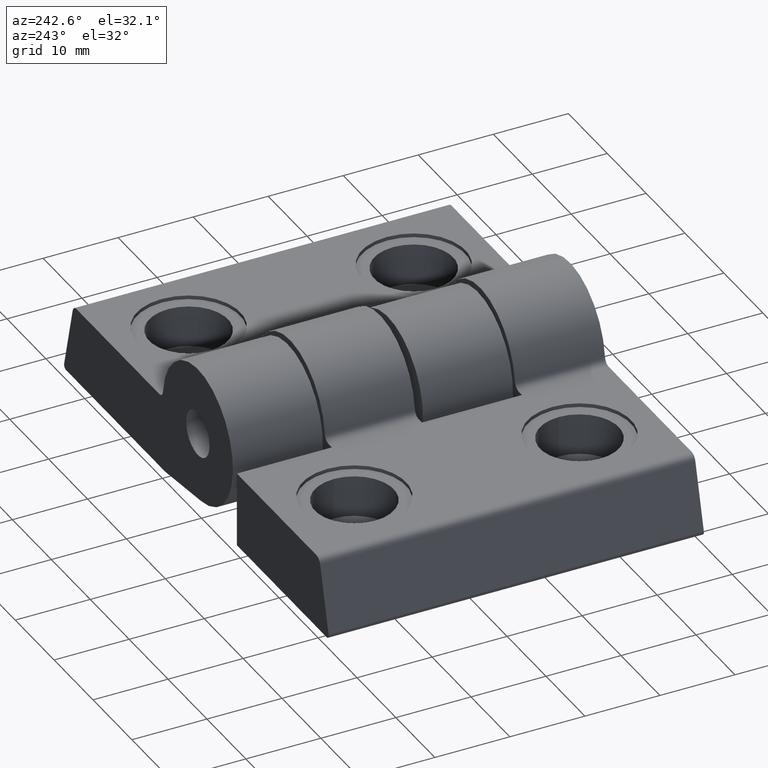
[diagram: clean part render]
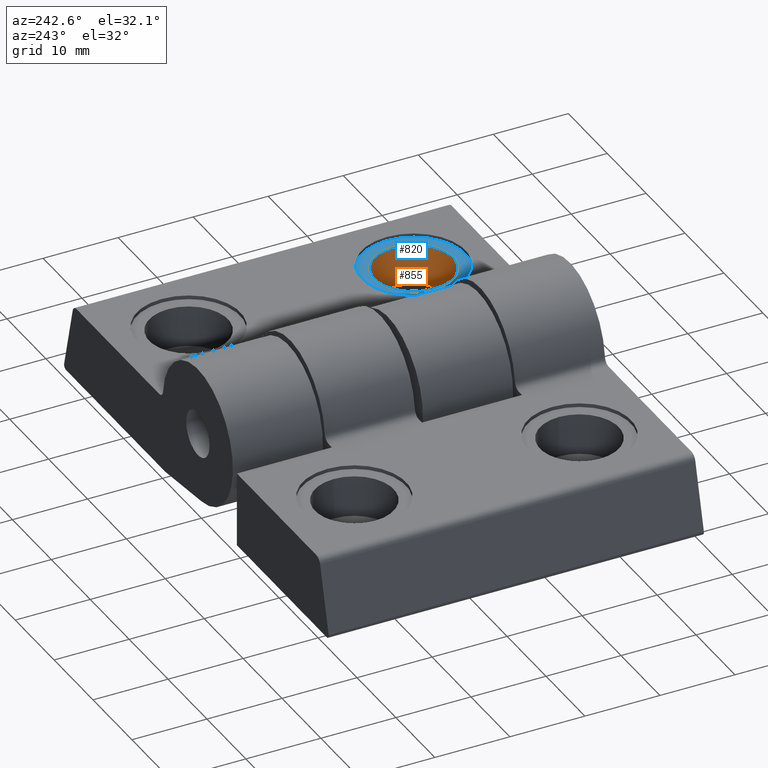
[diagram: same view with the hole feature highlighted: cylindrical wall and planar end face, labeled with their STEP entity ids]
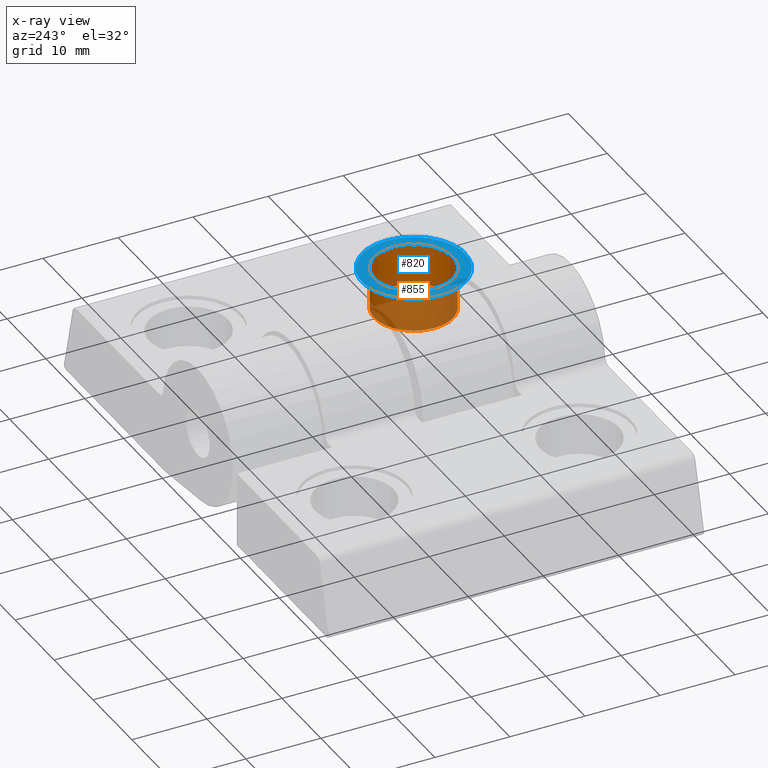
[diagram: x-ray of the same camera — body ghosted, the hole faces saturated]
A machine part, auxiliary view. The highlighted faces form one hole feature of diameter 10.5 mm: the cylindrical wall (entity #855, orange) and its adjacent planar end face (entity #820, blue) — they share a circular edge in the B-rep.
The next image is the same camera in x-ray (body ghosted, the hole faces saturated) — the bore reads through the body.
Wall:
#800=CARTESIAN_POINT('',(37.349988506627142,0.000011439997252,9.500000000000142));
#801=VERTEX_POINT('',#800);
#802=CARTESIAN_POINT('',(47.849987618632895,0.000011439997252,9.500000000000142));
#803=VERTEX_POINT('',#802);
#804=CARTESIAN_POINT('',(42.599988062630018,0.000011439997252,9.500000000000142));
#805=DIRECTION('',(0.0,-6.123234E-017,-1.0));
#806=DIRECTION('',(-1.0,0.0,0.0));
#807=AXIS2_PLACEMENT_3D('',#804,#805,#806);
#808=CIRCLE('',#807,5.249999556002877);
#809=EDGE_CURVE('',#801,#803,#808,.T.);
#811=CARTESIAN_POINT('',(42.599988062630018,0.000011439997252,9.500000000000142));
#812=DIRECTION('',(0.0,-6.123234E-017,-1.0));
#813=DIRECTION('',(-1.0,0.0,0.0));
#814=AXIS2_PLACEMENT_3D('',#811,#812,#813);
#815=CIRCLE('',#814,5.249999556002877);
#816=EDGE_CURVE('',#803,#801,#815,.T.);
#821=CARTESIAN_POINT('',(42.599988062630018,0.000011439997252,9.500000000000142));
#822=DIRECTION('',(0.0,-6.123234E-017,-1.0));
#823=DIRECTION('',(-1.0,0.0,0.0));
#824=AXIS2_PLACEMENT_3D('',#821,#822,#823);
#825=CYLINDRICAL_SURFACE('',#824,5.249999556002877);
#826=CARTESIAN_POINT('',(37.349988506623504,0.000011439997252,4.000005036021520));
#827=VERTEX_POINT('',#826);
#828=CARTESIAN_POINT('',(37.349988506627142,0.000011439997252,9.500000000000142));
#829=DIRECTION('',(0.0,0.0,-1.0));
#830=VECTOR('',#829,5.499994963978622);
#831=LINE('',#828,#830);
#832=EDGE_CURVE('',#801,#827,#831,.T.);
#833=ORIENTED_EDGE('',*,*,#832,.T.);
#834=CARTESIAN_POINT('',(47.849987618636533,0.000011439997252,4.000005036021520));
#835=VERTEX_POINT('',#834);
#836=CARTESIAN_POINT('',(42.599988062630018,0.000011439997252,4.000005036021520));
#837=DIRECTION('',(0.0,-6.123234E-017,-1.0));
#838=DIRECTION('',(-1.0,0.0,0.0));
#839=AXIS2_PLACEMENT_3D('',#836,#837,#838);
#840=CIRCLE('',#839,5.249999556006515);
#841=EDGE_CURVE('',#827,#835,#840,.T.);
#842=ORIENTED_EDGE('',*,*,#841,.T.);
#843=CARTESIAN_POINT('',(42.599988062630018,0.000011439997252,4.000005036021520));
#844=DIRECTION('',(0.0,-6.123234E-017,-1.0));
#845=DIRECTION('',(-1.0,0.0,0.0));
#846=AXIS2_PLACEMENT_3D('',#843,#844,#845);
#847=CIRCLE('',#846,5.249999556006515);
#848=EDGE_CURVE('',#835,#827,#847,.T.);
#849=ORIENTED_EDGE('',*,*,#848,.T.);
#850=ORIENTED_EDGE('',*,*,#832,.F.);
#851=ORIENTED_EDGE('',*,*,#816,.F.);
#852=ORIENTED_EDGE('',*,*,#809,.F.);
#853=EDGE_LOOP('',(#833,#842,#849,#850,#851,#852));
#854=FACE_OUTER_BOUND('',#853,.T.);
#855=ADVANCED_FACE('',(#854),#825,.F.);
End face:
#761=CARTESIAN_POINT('',(35.699987342923151,0.000011439997252,9.500000000000142));
#762=VERTEX_POINT('',#761);
#772=CARTESIAN_POINT('',(49.499988782336885,0.000011439997252,9.500000000000199));
#773=VERTEX_POINT('',#772);
#774=CARTESIAN_POINT('',(42.599988062630018,0.000011439997252,9.500000000000199));
#775=DIRECTION('',(0.0,-6.123234E-017,-1.0));
#776=DIRECTION('',(-1.0,0.0,0.0));
#777=AXIS2_PLACEMENT_3D('',#774,#775,#776);
#778=CIRCLE('',#777,6.900000719706867);
#779=EDGE_CURVE('',#762,#773,#778,.T.);
#781=CARTESIAN_POINT('',(42.599988062630018,0.000011439997252,9.500000000000199));
#782=DIRECTION('',(0.0,-6.123234E-017,-1.0));
#783=DIRECTION('',(-1.0,0.0,0.0));
#784=AXIS2_PLACEMENT_3D('',#781,#782,#783);
#785=CIRCLE('',#784,6.900000719706867);
#786=EDGE_CURVE('',#773,#762,#785,.T.);
#791=CARTESIAN_POINT('',(28.799986623216284,-13.799989999416482,9.500000000000199));
#792=DIRECTION('',(0.0,0.0,-1.0));
#793=DIRECTION('',(0.0,1.0,0.0));
#794=AXIS2_PLACEMENT_3D('',#791,#792,#793);
#795=PLANE('',#794);
#796=ORIENTED_EDGE('',*,*,#786,.F.);
#797=ORIENTED_EDGE('',*,*,#779,.F.);
#798=EDGE_LOOP('',(#796,#797));
#799=FACE_OUTER_BOUND('',#798,.T.);
#800=CARTESIAN_POINT('',(37.349988506627142,0.000011439997252,9.500000000000142));
#801=VERTEX_POINT('',#800);
#802=CARTESIAN_POINT('',(47.849987618632895,0.000011439997252,9.500000000000142));
#803=VERTEX_POINT('',#802);
#804=CARTESIAN_POINT('',(42.599988062630018,0.000011439997252,9.500000000000142));
#805=DIRECTION('',(0.0,-6.123234E-017,-1.0));
#806=DIRECTION('',(-1.0,0.0,0.0));
#807=AXIS2_PLACEMENT_3D('',#804,#805,#806);
#808=CIRCLE('',#807,5.249999556002877);
#809=EDGE_CURVE('',#801,#803,#808,.T.);
#810=ORIENTED_EDGE('',*,*,#809,.T.);
#811=CARTESIAN_POINT('',(42.599988062630018,0.000011439997252,9.500000000000142));
#812=DIRECTION('',(0.0,-6.123234E-017,-1.0));
#813=DIRECTION('',(-1.0,0.0,0.0));
#814=AXIS2_PLACEMENT_3D('',#811,#812,#813);
#815=CIRCLE('',#814,5.249999556002877);
#816=EDGE_CURVE('',#803,#801,#815,.T.);
#817=ORIENTED_EDGE('',*,*,#816,.T.);
#818=EDGE_LOOP('',(#810,#817));
#819=FACE_BOUND('',#818,.T.);
#820=ADVANCED_FACE('',(#799,#819),#795,.F.);